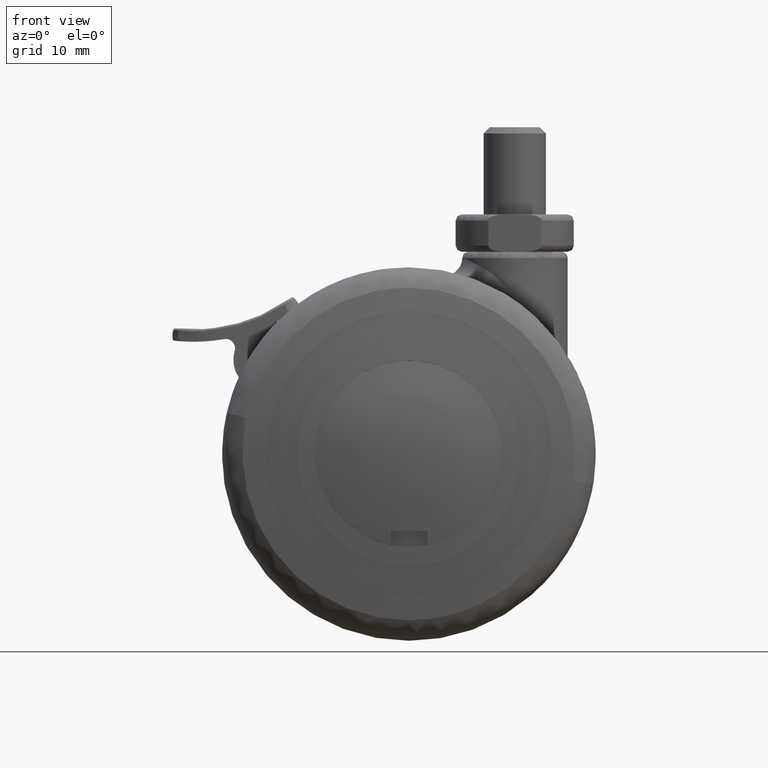
[diagram: clean part render]
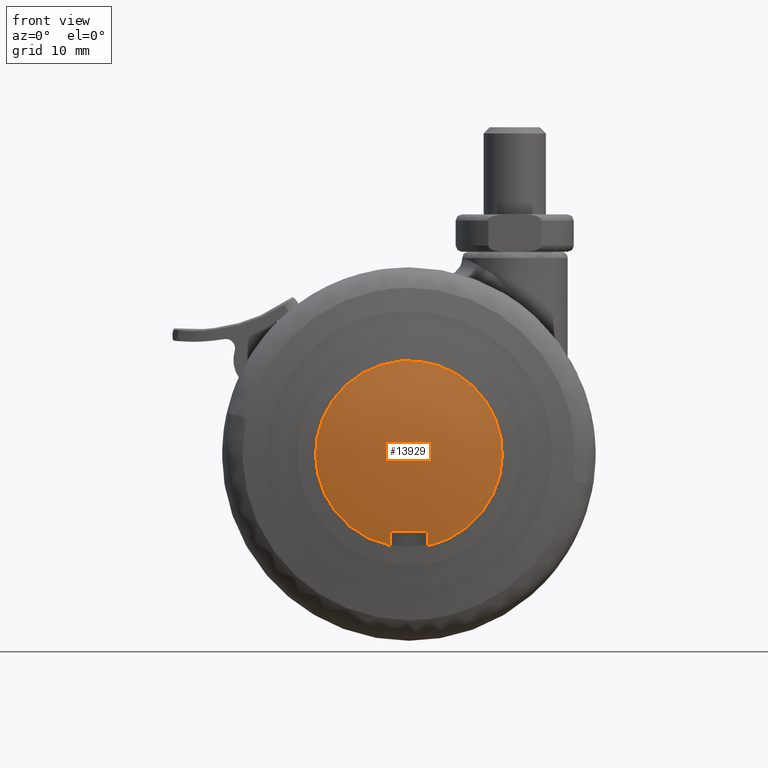
[diagram: same view with one face highlighted and labeled with its STEP entity id]
A machine part, front view. The second image highlights one B-rep face of the part: STEP entity #13929.
In plain terms, the highlighted face is a freeform B-spline surface patch.
Its self-contained STEP definition (entity closure, byte-faithful):
#11810=CARTESIAN_POINT('',(3.0,-23.033229668414350,-12.400000000000000));
#11811=VERTEX_POINT('',#11810);
#11812=CARTESIAN_POINT('',(-3.0,-23.033229668414350,-12.400000000000000));
#11813=VERTEX_POINT('',#11812);
#11814=CARTESIAN_POINT('',(3.000000000000015,-23.033229668414350,-12.400000000000000));
#11815=CARTESIAN_POINT('',(2.168404E-014,-23.186739989781426,-12.399999999999997));
#11816=CARTESIAN_POINT('',(-2.999999999999993,-23.033229668414350,-12.400000000000000));
#11824=(BOUNDED_CURVE()B_SPLINE_CURVE(2,(#11814,#11815,#11816),.UNSPECIFIED.,.F.,.U.)CURVE()GEOMETRIC_REPRESENTATION_ITEM()QUASI_UNIFORM_CURVE()RATIONAL_B_SPLINE_CURVE((1.0,0.998693375438973,1.0))REPRESENTATION_ITEM(''));
#11825=EDGE_CURVE('',#11811,#11813,#11824,.T.);
#11854=CARTESIAN_POINT('',(3.0,-22.500000193105048,-14.696938456699060));
#11855=VERTEX_POINT('',#11854);
#11856=CARTESIAN_POINT('',(3.0,-22.500000193105048,-14.696938456699060));
#11857=CARTESIAN_POINT('',(2.999999999999999,-22.789215183001911,-13.553715829802712));
#11858=CARTESIAN_POINT('',(3.0,-23.033229668414268,-12.399999999999990));
#11866=(BOUNDED_CURVE()B_SPLINE_CURVE(2,(#11856,#11857,#11858),.UNSPECIFIED.,.F.,.U.)CURVE()GEOMETRIC_REPRESENTATION_ITEM()QUASI_UNIFORM_CURVE()RATIONAL_B_SPLINE_CURVE((1.0,0.999806432813241,1.0))REPRESENTATION_ITEM(''));
#11867=EDGE_CURVE('',#11855,#11811,#11866,.T.);
#11890=CARTESIAN_POINT('',(-3.0,-22.500000193105048,-14.696938456699060));
#11891=VERTEX_POINT('',#11890);
#11892=CARTESIAN_POINT('',(-3.0,-23.033229668414268,-12.399999999999970));
#11893=CARTESIAN_POINT('',(-3.0,-22.789215183001925,-13.553715829802664));
#11894=CARTESIAN_POINT('',(-3.0,-22.500000193105048,-14.696938456699060));
#11902=(BOUNDED_CURVE()B_SPLINE_CURVE(2,(#11892,#11893,#11894),.UNSPECIFIED.,.F.,.U.)CURVE()GEOMETRIC_REPRESENTATION_ITEM()QUASI_UNIFORM_CURVE()RATIONAL_B_SPLINE_CURVE((1.0,0.999806432813240,1.0))REPRESENTATION_ITEM(''));
#11903=EDGE_CURVE('',#11813,#11891,#11902,.T.);
#13875=CARTESIAN_POINT('',(-3.0,-22.500000193105048,-14.696938456699060));
#13876=CARTESIAN_POINT('',(-16.287048005877153,-22.500000193111298,-11.984731139843753));
#13877=CARTESIAN_POINT('',(-14.924042295076861,-22.500000193111301,1.507634430078121));
#13878=CARTESIAN_POINT('',(-13.561036584276568,-22.500000193111298,14.999999999999998));
#13879=CARTESIAN_POINT('',(0.0,-22.500000193111301,15.0));
#13880=CARTESIAN_POINT('',(13.561036584276568,-22.500000193111298,14.999999999999998));
#13881=CARTESIAN_POINT('',(14.924042295076861,-22.500000193111301,1.507634430078128));
#13882=CARTESIAN_POINT('',(16.287048005877153,-22.500000193111298,-11.984731139843747));
#13883=CARTESIAN_POINT('',(3.0,-22.500000193105048,-14.696938456699060));
#13891=(BOUNDED_CURVE()B_SPLINE_CURVE(2,(#13875,#13876,#13877,#13878,#13879,#13880,#13881,#13882,#13883),.UNSPECIFIED.,.F.,.U.)B_SPLINE_CURVE_WITH_KNOTS((3,2,2,2,3),(0.0,0.250000000000000,0.500000000000000,0.750000000000000,1.0),.UNSPECIFIED.)CURVE()GEOMETRIC_REPRESENTATION_ITEM()RATIONAL_B_SPLINE_CURVE((1.0,0.741791399924941,1.0,0.741791399924941,1.0,0.741791399924941,1.0,0.741791399924941,1.0))REPRESENTATION_ITEM(''));
#13892=EDGE_CURVE('',#11891,#11855,#13891,.T.);
#13899=CARTESIAN_POINT('',(-16.098346467538715,-19.987903132292345,-15.855974009386893));
#13900=CARTESIAN_POINT('',(-8.202931159676842,-22.195516713013962,-16.133352820747060));
#13901=CARTESIAN_POINT('',(8.202930561120420,-22.195516713013962,-16.133352820747049));
#13902=CARTESIAN_POINT('',(16.098345336901620,-19.987903448426390,-15.855974049108001));
#13903=CARTESIAN_POINT('',(-16.445717487160895,-22.287371305518388,-7.442574693214092));
#13904=CARTESIAN_POINT('',(-8.383390024889796,-24.588442385695281,-7.561804526654255));
#13905=CARTESIAN_POINT('',(8.383389413165542,-24.588442385695281,-7.561804526654255));
#13906=CARTESIAN_POINT('',(16.445716333097600,-22.287371634899916,-7.442574710280973));
#13907=CARTESIAN_POINT('',(-16.445717487160895,-21.925092315760146,8.832047118799208));
#13908=CARTESIAN_POINT('',(-8.383390024889796,-24.219090781384001,9.030539621808934));
#13909=CARTESIAN_POINT('',(8.383389413165542,-24.219090781384001,9.030539621808934));
#13910=CARTESIAN_POINT('',(16.445716333097600,-21.925092644129272,8.832047147211968));
#13911=CARTESIAN_POINT('',(-16.184465571661647,-19.893092356467758,16.098522441003045));
#13912=CARTESIAN_POINT('',(-8.247656069661629,-22.110921546133486,16.433364579712762));
#13913=CARTESIAN_POINT('',(8.247655467841693,-22.110921546133486,16.433364579712762));
#13914=CARTESIAN_POINT('',(16.184464435212977,-19.893092674032257,16.098522488948113));
#13922=(BOUNDED_SURFACE()B_SPLINE_SURFACE(2,2,((#13899,#13903,#13907,#13911),(#13900,#13904,#13908,#13912),(#13901,#13905,#13909,#13913),(#13902,#13906,#13910,#13914)),.UNSPECIFIED.,.F.,.F.,.U.)B_SPLINE_SURFACE_WITH_KNOTS((3,1,3),(3,1,3),(14.482770024585720,30.682292575586398,46.881813944530492),(13.485859606695181,30.682292575586398,45.555778767633441),.UNSPECIFIED.)GEOMETRIC_REPRESENTATION_ITEM()RATIONAL_B_SPLINE_SURFACE(((1.041521878261768,1.019522563419284,1.019522563419284,1.035979839775345),(1.021999314842484,1.0,1.0,1.016457276356061),(1.021999314842484,1.0,1.0,1.016457276356061),(1.041521875412700,1.019522560570215,1.019522560570215,1.035979836926277)))REPRESENTATION_ITEM('')SURFACE());
#13923=ORIENTED_EDGE('',*,*,#11903,.F.);
#13924=ORIENTED_EDGE('',*,*,#11825,.F.);
#13925=ORIENTED_EDGE('',*,*,#11867,.F.);
#13926=ORIENTED_EDGE('',*,*,#13892,.F.);
#13927=EDGE_LOOP('',(#13923,#13924,#13925,#13926));
#13928=FACE_OUTER_BOUND('',#13927,.T.);
#13929=ADVANCED_FACE('',(#13928),#13922,.T.);